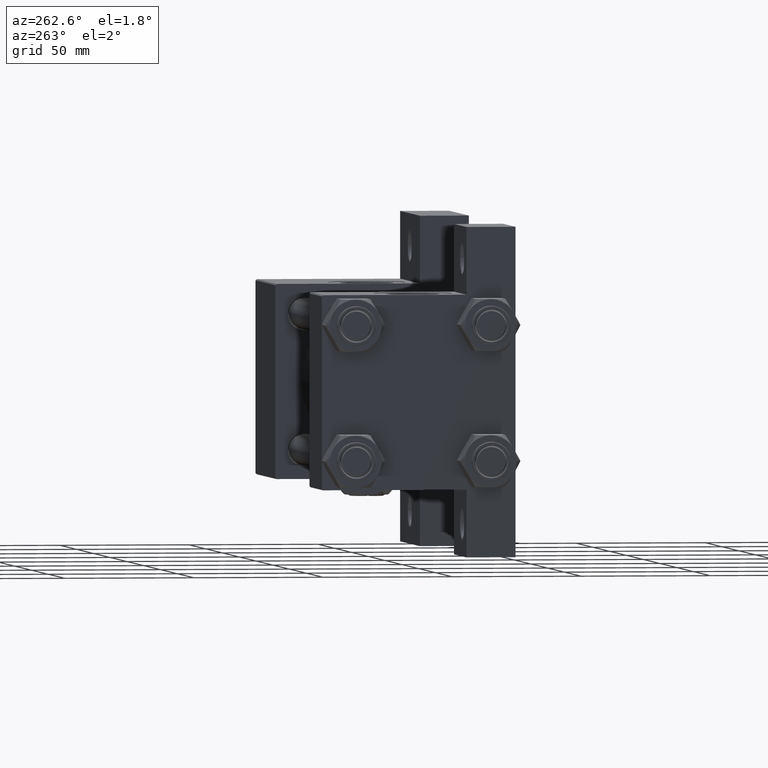
[diagram: clean part render]
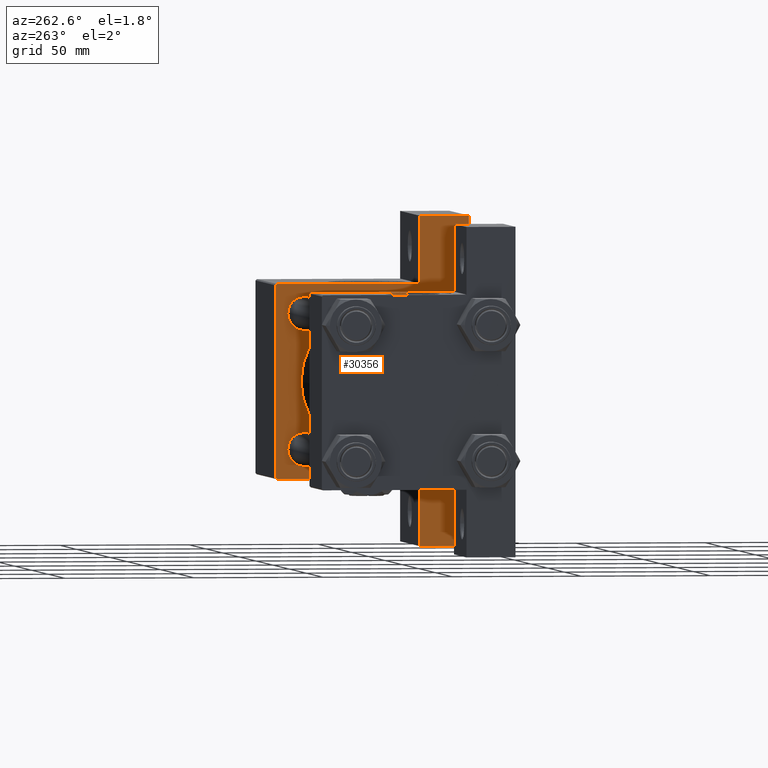
[diagram: same view with one face highlighted and labeled with its STEP entity id]
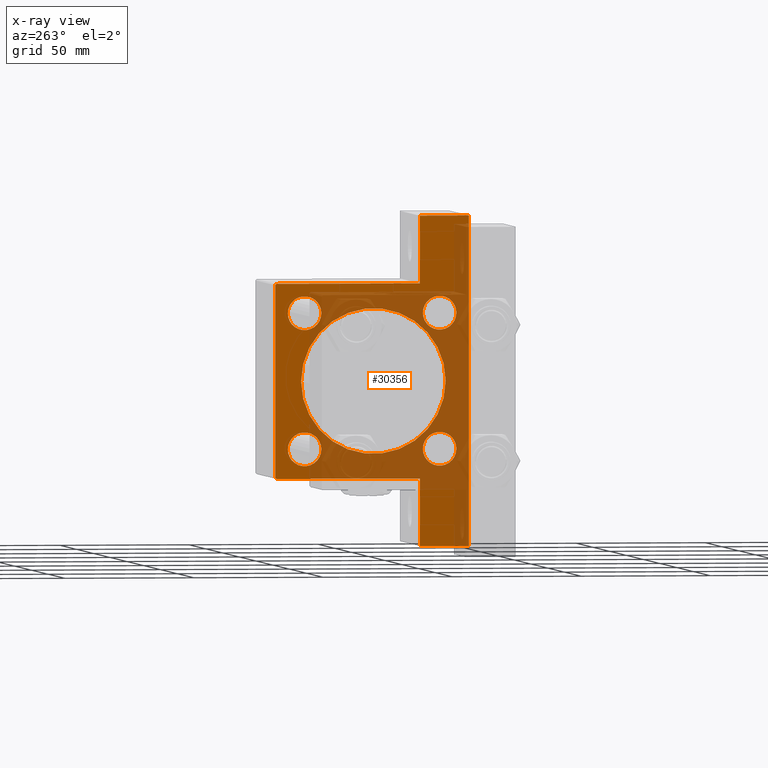
[diagram: x-ray of the same camera — body ghosted, the highlighted face saturated]
A machine part, auxiliary view. The second image highlights one B-rep face of the part: STEP entity #30356.
The next image is the same camera in x-ray: the body ghosted, the highlighted face saturated — about 57% of this face is hidden behind the body in this view.
In plain terms, the highlighted planar face has unit normal (-1, 0, 0).
Its self-contained STEP definition (entity closure, byte-faithful):
#241 = VERTEX_POINT ( 'NONE', #18492 ) ;
#300 = AXIS2_PLACEMENT_3D ( 'NONE', #14774, #6801, #44905 ) ;
#580 = VERTEX_POINT ( 'NONE', #32577 ) ;
#634 = CARTESIAN_POINT ( 'NONE',  ( 138.9999999999999716, 37.00000000000002842, 37.49999999999999289 ) ) ;
#989 = FACE_BOUND ( 'NONE', #24102, .T. ) ;
#1536 = CARTESIAN_POINT ( 'NONE',  ( 139.0000000000000000, 63.49999999999997158, -18.50000000000000000 ) ) ;
#2036 = EDGE_CURVE ( 'NONE', #48380, #4567, #8577, .T. ) ;
#2150 = CARTESIAN_POINT ( 'NONE',  ( 138.9999999999999716, 37.50000000000000000, 37.00000000000004974 ) ) ;
#2481 = DIRECTION ( 'NONE',  ( 1.000000000000000000, 0.000000000000000000, 0.000000000000000000 ) ) ;
#3117 = DIRECTION ( 'NONE',  ( 0.000000000000000000, 0.000000000000000000, -1.000000000000000000 ) ) ;
#3528 = DIRECTION ( 'NONE',  ( 1.000000000000000000, 0.000000000000000000, -0.000000000000000000 ) ) ;
#3698 = LINE ( 'NONE', #37308, #6533 ) ;
#3893 = ORIENTED_EDGE ( 'NONE', *, *, #13602, .F. ) ;
#4016 = VERTEX_POINT ( 'NONE', #15247 ) ;
#4214 = CARTESIAN_POINT ( 'NONE',  ( 138.9999999999999716, -26.14999999999999147, -26.15000000000000924 ) ) ;
#4298 = ORIENTED_EDGE ( 'NONE', *, *, #37380, .T. ) ;
#4504 = CARTESIAN_POINT ( 'NONE',  ( 138.9999999999999716, 26.14999999999999858, 26.15000000000000213 ) ) ;
#4567 = VERTEX_POINT ( 'NONE', #30070 ) ;
#4784 = LINE ( 'NONE', #1536, #37715 ) ;
#4868 = VECTOR ( 'NONE', #7851, 1000.000000000000000 ) ;
#5289 = EDGE_LOOP ( 'NONE', ( #44115, #4298 ) ) ;
#5439 = VERTEX_POINT ( 'NONE', #24788 ) ;
#5606 = VERTEX_POINT ( 'NONE', #26047 ) ;
#6107 = AXIS2_PLACEMENT_3D ( 'NONE', #19020, #26754, #19513 ) ;
#6533 = VECTOR ( 'NONE', #18864, 1000.000000000000114 ) ;
#6801 = DIRECTION ( 'NONE',  ( 1.000000000000000000, 0.000000000000000000, -0.000000000000000000 ) ) ;
#6904 = ORIENTED_EDGE ( 'NONE', *, *, #23775, .T. ) ;
#7472 = CARTESIAN_POINT ( 'NONE',  ( 138.9999999999999716, -26.14999999999999147, 26.15000000000000924 ) ) ;
#7548 = DIRECTION ( 'NONE',  ( 0.000000000000000000, -9.251858538542972814E-17, -1.000000000000000000 ) ) ;
#7718 = DIRECTION ( 'NONE',  ( 1.000000000000000000, 0.000000000000000000, -0.000000000000000000 ) ) ;
#7851 = DIRECTION ( 'NONE',  ( 0.000000000000000000, 0.000000000000000000, -1.000000000000000000 ) ) ;
#7961 = FACE_BOUND ( 'NONE', #36552, .T. ) ;
#8298 = ORIENTED_EDGE ( 'NONE', *, *, #23619, .T. ) ;
#8548 = CARTESIAN_POINT ( 'NONE',  ( 138.9999999999999716, -26.14999999999999147, -26.15000000000000924 ) ) ;
#8577 = LINE ( 'NONE', #27514, #4868 ) ;
#8922 = VERTEX_POINT ( 'NONE', #36887 ) ;
#9580 = ORIENTED_EDGE ( 'NONE', *, *, #26943, .T. ) ;
#10397 = AXIS2_PLACEMENT_3D ( 'NONE', #4504, #3528, #11957 ) ;
#11761 = ORIENTED_EDGE ( 'NONE', *, *, #32998, .T. ) ;
#11957 = DIRECTION ( 'NONE',  ( 0.000000000000000000, 0.000000000000000000, 1.000000000000000000 ) ) ;
#12310 = VERTEX_POINT ( 'NONE', #31664 ) ;
#12625 = CARTESIAN_POINT ( 'NONE',  ( 138.9999999999999716, 37.24999999999898392, 37.25000000000104450 ) ) ;
#13026 = CARTESIAN_POINT ( 'NONE',  ( 138.9999999999999716, 3.429011037612589276E-15, -28.50000000000000000 ) ) ;
#13337 = EDGE_CURVE ( 'NONE', #41756, #48380, #4784, .T. ) ;
#13504 = CARTESIAN_POINT ( 'NONE',  ( 138.9999999999999716, -37.50000000000000000, -18.50000000000000000 ) ) ;
#13583 = EDGE_LOOP ( 'NONE', ( #45295, #40280, #41589, #20122, #17606, #39043, #42285, #25969, #3893, #8298 ) ) ;
#13602 = EDGE_CURVE ( 'NONE', #5439, #30250, #30207, .T. ) ;
#13720 = AXIS2_PLACEMENT_3D ( 'NONE', #39267, #46989, #35291 ) ;
#14082 = VERTEX_POINT ( 'NONE', #30397 ) ;
#14105 = VECTOR ( 'NONE', #37047, 1000.000000000000000 ) ;
#14246 = ORIENTED_EDGE ( 'NONE', *, *, #44624, .T. ) ;
#14774 = CARTESIAN_POINT ( 'NONE',  ( 138.9999999999999716, 26.14999999999999858, -26.15000000000000213 ) ) ;
#15247 = CARTESIAN_POINT ( 'NONE',  ( 138.9999999999999716, 26.14999999999999858, 19.65000000000000568 ) ) ;
#15690 = CARTESIAN_POINT ( 'NONE',  ( 138.9999999999999716, 0.000000000000000000, 0.000000000000000000 ) ) ;
#16173 = DIRECTION ( 'NONE',  ( -1.000000000000000000, -0.000000000000000000, 0.000000000000000000 ) ) ;
#16546 = CIRCLE ( 'NONE', #20524, 28.00000000000000000 ) ;
#16623 = LINE ( 'NONE', #39292, #40376 ) ;
#16754 = DIRECTION ( 'NONE',  ( 0.000000000000000000, 0.000000000000000000, 1.000000000000000000 ) ) ;
#17198 = EDGE_CURVE ( 'NONE', #27499, #38079, #21440, .T. ) ;
#17262 = AXIS2_PLACEMENT_3D ( 'NONE', #8548, #43410, #16754 ) ;
#17606 = ORIENTED_EDGE ( 'NONE', *, *, #2036, .T. ) ;
#17862 = EDGE_LOOP ( 'NONE', ( #11761, #14246 ) ) ;
#18003 = CIRCLE ( 'NONE', #35512, 6.500000000000008882 ) ;
#18428 = EDGE_CURVE ( 'NONE', #40898, #23381, #18003, .T. ) ;
#18492 = CARTESIAN_POINT ( 'NONE',  ( 138.9999999999999716, -63.50000000000000000, -37.50000000000000000 ) ) ;
#18861 = CIRCLE ( 'NONE', #17262, 6.500000000000008882 ) ;
#18864 = DIRECTION ( 'NONE',  ( -0.000000000000000000, 0.7071067811865474617, 0.7071067811865474617 ) ) ;
#19020 = CARTESIAN_POINT ( 'NONE',  ( 138.9999999999999716, 26.14999999999999858, 26.15000000000000213 ) ) ;
#19059 = EDGE_CURVE ( 'NONE', #27499, #22862, #45267, .T. ) ;
#19513 = DIRECTION ( 'NONE',  ( 0.000000000000000000, 0.000000000000000000, 1.000000000000000000 ) ) ;
#19660 = FACE_BOUND ( 'NONE', #5289, .T. ) ;
#20122 = ORIENTED_EDGE ( 'NONE', *, *, #13337, .T. ) ;
#20123 = CARTESIAN_POINT ( 'NONE',  ( 138.9999999999999716, 37.50000000000000000, -18.50000000000000355 ) ) ;
#20524 = AXIS2_PLACEMENT_3D ( 'NONE', #44547, #2481, #36589 ) ;
#21440 = LINE ( 'NONE', #39888, #29083 ) ;
#21517 = LINE ( 'NONE', #37220, #37145 ) ;
#21988 = VECTOR ( 'NONE', #46987, 1000.000000000000000 ) ;
#22033 = CIRCLE ( 'NONE', #41127, 6.500000000000008882 ) ;
#22345 = CARTESIAN_POINT ( 'NONE',  ( 138.9999999999999716, 26.14999999999999858, 32.65000000000000568 ) ) ;
#22578 = VECTOR ( 'NONE', #43453, 1000.000000000000000 ) ;
#22641 = VERTEX_POINT ( 'NONE', #22345 ) ;
#22667 = DIRECTION ( 'NONE',  ( 0.000000000000000000, 0.000000000000000000, 1.000000000000000000 ) ) ;
#22862 = VERTEX_POINT ( 'NONE', #2150 ) ;
#23152 = FACE_BOUND ( 'NONE', #42788, .T. ) ;
#23329 = EDGE_CURVE ( 'NONE', #580, #28581, #24850, .T. ) ;
#23381 = VERTEX_POINT ( 'NONE', #31604 ) ;
#23401 = FACE_OUTER_BOUND ( 'NONE', #13583, .T. ) ;
#23616 = DIRECTION ( 'NONE',  ( 0.000000000000000000, 0.000000000000000000, 1.000000000000000000 ) ) ;
#23619 = EDGE_CURVE ( 'NONE', #5439, #38079, #3698, .T. ) ;
#23775 = EDGE_CURVE ( 'NONE', #5606, #12310, #45546, .T. ) ;
#24068 = ORIENTED_EDGE ( 'NONE', *, *, #23329, .T. ) ;
#24102 = EDGE_LOOP ( 'NONE', ( #9580, #6904 ) ) ;
#24523 = CARTESIAN_POINT ( 'NONE',  ( 139.0000000000000000, 63.49999999999997158, -18.50000000000000000 ) ) ;
#24533 = CARTESIAN_POINT ( 'NONE',  ( 138.9999999999999716, 0.000000000000000000, -0.5000000000000004441 ) ) ;
#24788 = CARTESIAN_POINT ( 'NONE',  ( 138.9999999999999716, -37.50000000000000000, 36.99999999999995026 ) ) ;
#24850 = CIRCLE ( 'NONE', #30425, 6.500000000000008882 ) ;
#25969 = ORIENTED_EDGE ( 'NONE', *, *, #41825, .T. ) ;
#26047 = CARTESIAN_POINT ( 'NONE',  ( 138.9999999999999716, 26.14999999999999858, -32.65000000000001279 ) ) ;
#26754 = DIRECTION ( 'NONE',  ( 1.000000000000000000, 0.000000000000000000, -0.000000000000000000 ) ) ;
#26943 = EDGE_CURVE ( 'NONE', #12310, #5606, #44829, .T. ) ;
#27115 = CARTESIAN_POINT ( 'NONE',  ( 138.9999999999999716, -36.99999999999997158, 37.49999999999997868 ) ) ;
#27499 = VERTEX_POINT ( 'NONE', #634 ) ;
#27514 = CARTESIAN_POINT ( 'NONE',  ( 139.0000000000000000, 63.49999999999997158, -18.50000000000000000 ) ) ;
#28259 = CARTESIAN_POINT ( 'NONE',  ( 138.9999999999999716, -63.50000000000000000, -18.50000000000000000 ) ) ;
#28262 = DIRECTION ( 'NONE',  ( 1.000000000000000000, 0.000000000000000000, 0.000000000000000000 ) ) ;
#28513 = CARTESIAN_POINT ( 'NONE',  ( 138.9999999999999716, -26.14999999999999147, -19.65000000000000213 ) ) ;
#28581 = VERTEX_POINT ( 'NONE', #48478 ) ;
#29067 = LINE ( 'NONE', #40292, #14105 ) ;
#29083 = VECTOR ( 'NONE', #46885, 1000.000000000000000 ) ;
#29942 = EDGE_CURVE ( 'NONE', #14082, #241, #47441, .T. ) ;
#30070 = CARTESIAN_POINT ( 'NONE',  ( 139.0000000000000000, 63.49999999999997158, -37.50000000000000000 ) ) ;
#30207 = LINE ( 'NONE', #49159, #45684 ) ;
#30250 = VERTEX_POINT ( 'NONE', #13504 ) ;
#30356 = ADVANCED_FACE ( 'NONE', ( #7961, #19660, #989, #23152, #42321, #23401 ), #47052, .T. ) ;
#30397 = CARTESIAN_POINT ( 'NONE',  ( 138.9999999999999716, -63.50000000000000000, -18.50000000000000000 ) ) ;
#30425 = AXIS2_PLACEMENT_3D ( 'NONE', #7472, #7718, #22667 ) ;
#31361 = DIRECTION ( 'NONE',  ( 0.000000000000000000, 0.000000000000000000, 1.000000000000000000 ) ) ;
#31500 = ORIENTED_EDGE ( 'NONE', *, *, #38402, .T. ) ;
#31604 = CARTESIAN_POINT ( 'NONE',  ( 138.9999999999999716, -26.14999999999999147, -32.65000000000002700 ) ) ;
#31664 = CARTESIAN_POINT ( 'NONE',  ( 138.9999999999999716, 26.14999999999999858, -19.64999999999999503 ) ) ;
#31707 = ORIENTED_EDGE ( 'NONE', *, *, #18428, .T. ) ;
#32577 = CARTESIAN_POINT ( 'NONE',  ( 138.9999999999999716, -26.14999999999999147, 32.65000000000001990 ) ) ;
#32689 = CIRCLE ( 'NONE', #10397, 6.499999999999995559 ) ;
#32998 = EDGE_CURVE ( 'NONE', #8922, #40394, #44099, .T. ) ;
#34760 = DIRECTION ( 'NONE',  ( 1.000000000000000000, 0.000000000000000000, -0.000000000000000000 ) ) ;
#35291 = DIRECTION ( 'NONE',  ( 0.000000000000000000, 0.000000000000000000, 1.000000000000000000 ) ) ;
#35512 = AXIS2_PLACEMENT_3D ( 'NONE', #4214, #38321, #23616 ) ;
#36552 = EDGE_LOOP ( 'NONE', ( #24068, #43279 ) ) ;
#36589 = DIRECTION ( 'NONE',  ( 0.000000000000000000, 0.000000000000000000, -1.000000000000000000 ) ) ;
#36887 = CARTESIAN_POINT ( 'NONE',  ( 138.9999999999999716, 0.000000000000000000, 27.50000000000000000 ) ) ;
#37047 = DIRECTION ( 'NONE',  ( 0.000000000000000000, 1.000000000000000000, 0.000000000000000000 ) ) ;
#37109 = CIRCLE ( 'NONE', #6107, 6.499999999999995559 ) ;
#37145 = VECTOR ( 'NONE', #3117, 1000.000000000000000 ) ;
#37220 = CARTESIAN_POINT ( 'NONE',  ( 138.9999999999999716, 37.50000000000000000, 37.49999999999999289 ) ) ;
#37308 = CARTESIAN_POINT ( 'NONE',  ( 138.9999999999999716, -37.24999999999997158, 37.24999999999997158 ) ) ;
#37342 = EDGE_CURVE ( 'NONE', #22862, #41756, #21517, .T. ) ;
#37380 = EDGE_CURVE ( 'NONE', #4016, #22641, #37109, .T. ) ;
#37715 = VECTOR ( 'NONE', #42628, 1000.000000000000000 ) ;
#38079 = VERTEX_POINT ( 'NONE', #27115 ) ;
#38321 = DIRECTION ( 'NONE',  ( 1.000000000000000000, 0.000000000000000000, -0.000000000000000000 ) ) ;
#38402 = EDGE_CURVE ( 'NONE', #23381, #40898, #18861, .T. ) ;
#39037 = DIRECTION ( 'NONE',  ( 0.000000000000000000, -1.000000000000000000, 0.000000000000000000 ) ) ;
#39043 = ORIENTED_EDGE ( 'NONE', *, *, #39864, .T. ) ;
#39267 = CARTESIAN_POINT ( 'NONE',  ( 138.9999999999999716, 26.14999999999999858, -26.15000000000000213 ) ) ;
#39292 = CARTESIAN_POINT ( 'NONE',  ( 138.9999999999999716, 37.50000000000000000, -37.50000000000000000 ) ) ;
#39864 = EDGE_CURVE ( 'NONE', #4567, #241, #16623, .T. ) ;
#39888 = CARTESIAN_POINT ( 'NONE',  ( 138.9999999999999716, 37.50000000000000000, 37.49999999999999289 ) ) ;
#40280 = ORIENTED_EDGE ( 'NONE', *, *, #19059, .T. ) ;
#40292 = CARTESIAN_POINT ( 'NONE',  ( 138.9999999999999716, -63.50000000000000000, -18.50000000000000000 ) ) ;
#40376 = VECTOR ( 'NONE', #39037, 1000.000000000000000 ) ;
#40394 = VERTEX_POINT ( 'NONE', #13026 ) ;
#40898 = VERTEX_POINT ( 'NONE', #28513 ) ;
#41127 = AXIS2_PLACEMENT_3D ( 'NONE', #45464, #34760, #45971 ) ;
#41589 = ORIENTED_EDGE ( 'NONE', *, *, #37342, .T. ) ;
#41756 = VERTEX_POINT ( 'NONE', #20123 ) ;
#41825 = EDGE_CURVE ( 'NONE', #14082, #30250, #29067, .T. ) ;
#42148 = EDGE_CURVE ( 'NONE', #28581, #580, #22033, .T. ) ;
#42285 = ORIENTED_EDGE ( 'NONE', *, *, #29942, .F. ) ;
#42321 = FACE_BOUND ( 'NONE', #17862, .T. ) ;
#42628 = DIRECTION ( 'NONE',  ( 1.067522139062651657E-15, 1.000000000000000000, -0.000000000000000000 ) ) ;
#42788 = EDGE_LOOP ( 'NONE', ( #31707, #31500 ) ) ;
#43279 = ORIENTED_EDGE ( 'NONE', *, *, #42148, .T. ) ;
#43410 = DIRECTION ( 'NONE',  ( 1.000000000000000000, 0.000000000000000000, -0.000000000000000000 ) ) ;
#43453 = DIRECTION ( 'NONE',  ( 0.000000000000000000, 0.000000000000000000, -1.000000000000000000 ) ) ;
#43457 = DIRECTION ( 'NONE',  ( 0.000000000000000000, 0.000000000000000000, -1.000000000000000000 ) ) ;
#44099 = CIRCLE ( 'NONE', #45691, 28.00000000000000000 ) ;
#44115 = ORIENTED_EDGE ( 'NONE', *, *, #47998, .T. ) ;
#44547 = CARTESIAN_POINT ( 'NONE',  ( 138.9999999999999716, 0.000000000000000000, -0.5000000000000004441 ) ) ;
#44624 = EDGE_CURVE ( 'NONE', #40394, #8922, #16546, .T. ) ;
#44829 = CIRCLE ( 'NONE', #300, 6.500000000000008882 ) ;
#44905 = DIRECTION ( 'NONE',  ( 0.000000000000000000, 0.000000000000000000, 1.000000000000000000 ) ) ;
#45267 = LINE ( 'NONE', #12625, #21988 ) ;
#45295 = ORIENTED_EDGE ( 'NONE', *, *, #17198, .F. ) ;
#45464 = CARTESIAN_POINT ( 'NONE',  ( 138.9999999999999716, -26.14999999999999147, 26.15000000000000924 ) ) ;
#45546 = CIRCLE ( 'NONE', #13720, 6.500000000000008882 ) ;
#45684 = VECTOR ( 'NONE', #7548, 1000.000000000000000 ) ;
#45691 = AXIS2_PLACEMENT_3D ( 'NONE', #24533, #28262, #43457 ) ;
#45971 = DIRECTION ( 'NONE',  ( 0.000000000000000000, 0.000000000000000000, 1.000000000000000000 ) ) ;
#46885 = DIRECTION ( 'NONE',  ( 0.000000000000000000, -1.000000000000000000, -1.850371707708594316E-16 ) ) ;
#46987 = DIRECTION ( 'NONE',  ( 0.000000000000000000, 0.7071067811865671127, -0.7071067811865279218 ) ) ;
#46989 = DIRECTION ( 'NONE',  ( 1.000000000000000000, 0.000000000000000000, -0.000000000000000000 ) ) ;
#47052 = PLANE ( 'NONE',  #47214 ) ;
#47214 = AXIS2_PLACEMENT_3D ( 'NONE', #15690, #16173, #31361 ) ;
#47441 = LINE ( 'NONE', #28259, #22578 ) ;
#47998 = EDGE_CURVE ( 'NONE', #22641, #4016, #32689, .T. ) ;
#48380 = VERTEX_POINT ( 'NONE', #24523 ) ;
#48478 = CARTESIAN_POINT ( 'NONE',  ( 138.9999999999999716, -26.14999999999999147, 19.65000000000000213 ) ) ;
#49159 = CARTESIAN_POINT ( 'NONE',  ( 138.9999999999999716, -37.50000000000000000, 37.49999999999997868 ) ) ;